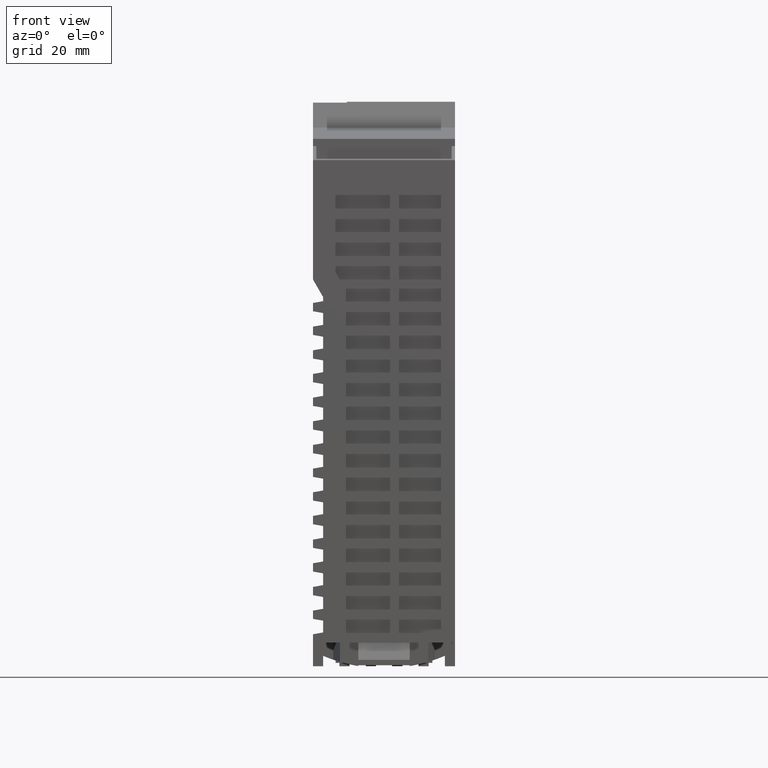
[diagram: clean part render]
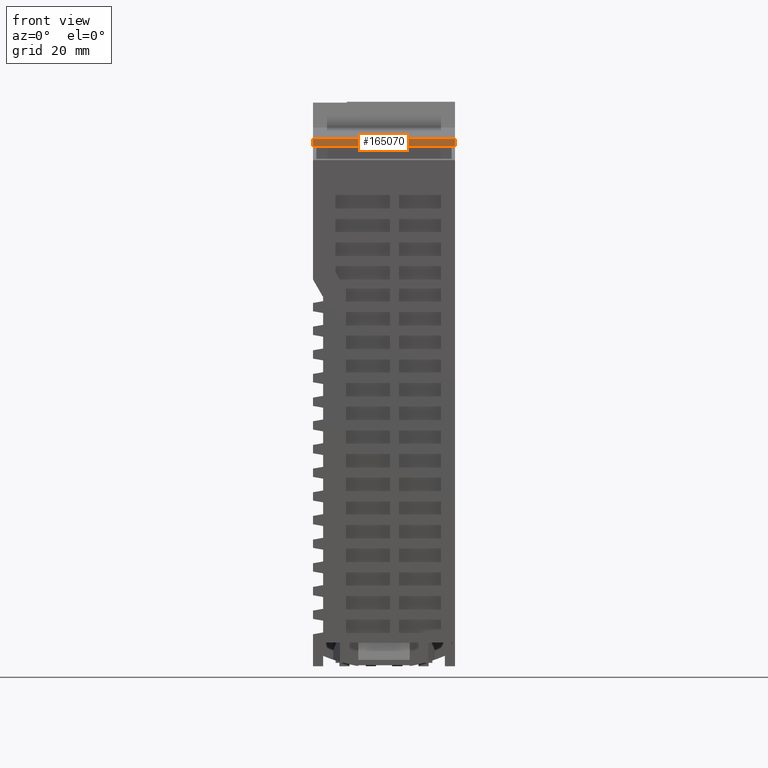
[diagram: same view with one face highlighted and labeled with its STEP entity id]
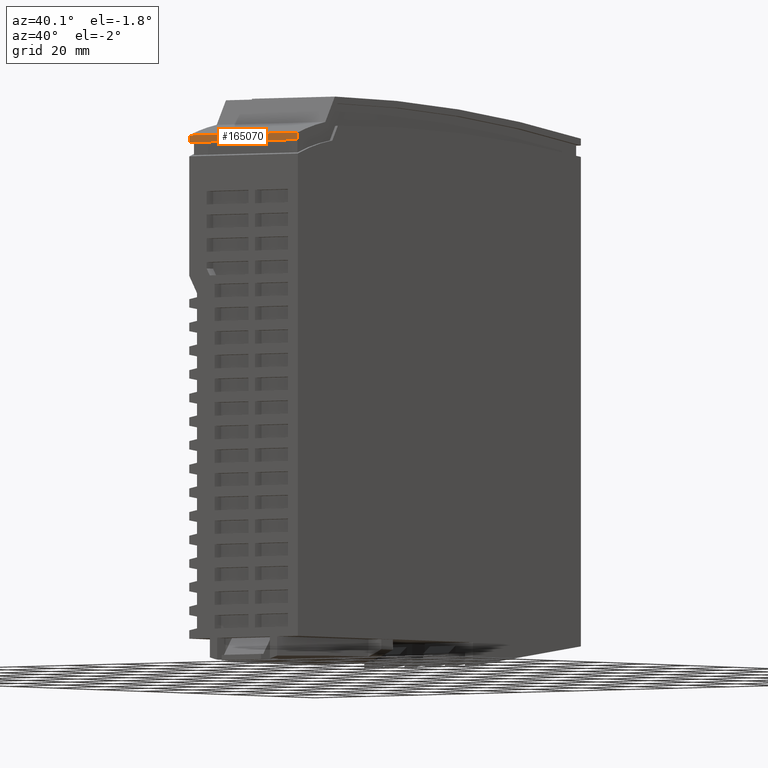
[diagram: same view with one face highlighted and labeled with its STEP entity id]
A machine part, front view. The second image highlights one B-rep face of the part: STEP entity #165070.
A second angle (auxiliary view) of the same face is appended — the face is thin or edge-on in the first view.
In plain terms, the highlighted planar face has unit normal (0, -1, -0).
Its self-contained STEP definition (entity closure, byte-faithful):
#144230=CARTESIAN_POINT('',(3.,0.,-63.5));
#144240=DIRECTION('',(-0.,-1.,-0.));
#144250=DIRECTION('',(-1.,0.,0.));
#144260=AXIS2_PLACEMENT_3D('',#144230,#144240,#144250);
#144270=PLANE('',#144260);
#150980=CARTESIAN_POINT('',(149.000000000004,0.,-8.5));
#150990=VERTEX_POINT('',#150980);
#151020=CARTESIAN_POINT('',(128.90472881771,0.,-8.5));
#151030=DIRECTION('',(1.,0.,0.));
#151040=VECTOR('',#151030,1.);
#151050=LINE('',#151020,#151040);
#151060=CARTESIAN_POINT('',(146.867696038368,7.105427357601E-14,-8.5));
#151070=VERTEX_POINT('',#151060);
#151080=EDGE_CURVE('',#151070,#150990,#151050,.T.);
#155080=CARTESIAN_POINT('',(146.867696038368,1.4210854715202E-14,3.5));
#155090=DIRECTION('',(0.,0.,-1.));
#155100=VECTOR('',#155090,1.);
#155110=LINE('',#155080,#155100);
#155120=CARTESIAN_POINT('',(146.867696038368,4.2632564145606E-14,-50.5))
;
#155130=VERTEX_POINT('',#155120);
#155140=EDGE_CURVE('',#151070,#155130,#155110,.T.);
#155750=CARTESIAN_POINT('',(149.000000000004,0.,-70.3000024));
#155760=DIRECTION('',(0.,0.,-1.));
#155770=VECTOR('',#155760,1.);
#155780=LINE('',#155750,#155770);
#155790=CARTESIAN_POINT('',(149.000000000004,0.,-50.5));
#155800=VERTEX_POINT('',#155790);
#155810=EDGE_CURVE('',#150990,#155800,#155780,.T.);
#163850=CARTESIAN_POINT('',(128.90472881771,0.,-50.5));
#163860=DIRECTION('',(-1.,0.,0.));
#163870=VECTOR('',#163860,1.);
#163880=LINE('',#163850,#163870);
#163890=EDGE_CURVE('',#155800,#155130,#163880,.T.);
#165010=ORIENTED_EDGE('',*,*,#163890,.F.);
#165020=ORIENTED_EDGE('',*,*,#155140,.T.);
#165030=ORIENTED_EDGE('',*,*,#151080,.F.);
#165040=ORIENTED_EDGE('',*,*,#155810,.F.);
#165050=EDGE_LOOP('',(#165040,#165030,#165020,#165010));
#165060=FACE_OUTER_BOUND('',#165050,.T.);
#165070=ADVANCED_FACE('',(#165060),#144270,.T.);